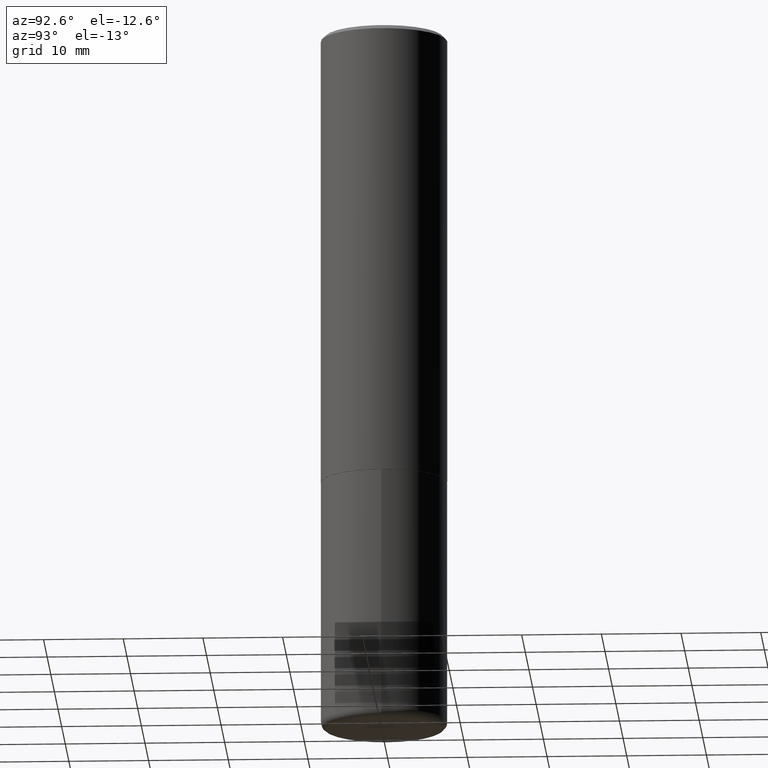
[diagram: clean part render]
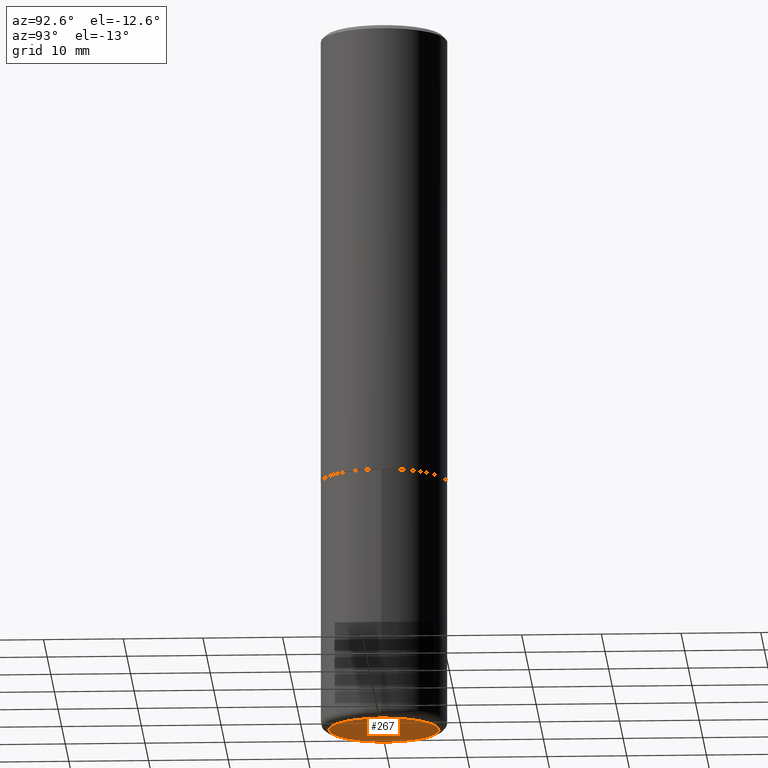
[diagram: same view with one face highlighted and labeled with its STEP entity id]
A machine part, auxiliary view. The second image highlights one B-rep face of the part: STEP entity #267.
In plain terms, the highlighted planar face has unit normal (0, -0, -1).
Its self-contained STEP definition (entity closure, byte-faithful):
#23 = DIRECTION ( 'NONE',  ( -2.445468806185136597E-29, 3.491481338843145583E-15, 1.000000000000000000 ) ) ;
#42 = AXIS2_PLACEMENT_3D ( 'NONE', #395, #229, #357 ) ;
#79 = VERTEX_POINT ( 'NONE', #95 ) ;
#80 = CIRCLE ( 'NONE', #308, 0.2725000000000000200 ) ;
#91 = CARTESIAN_POINT ( 'NONE',  ( 0.2725000000000000200, -1.412304201562051765E-14, -3.500000000000000444 ) ) ;
#95 = CARTESIAN_POINT ( 'NONE',  ( -0.2725000000000000200, -1.007201755707584997E-14, -3.500000000000000444 ) ) ;
#110 = FACE_OUTER_BOUND ( 'NONE', #342, .T. ) ;
#118 = DIRECTION ( 'NONE',  ( -1.000000000000000000, 6.982962677686265922E-15, -4.876176775795935793E-29 ) ) ;
#173 = ORIENTED_EDGE ( 'NONE', *, *, #200, .F. ) ;
#197 = AXIS2_PLACEMENT_3D ( 'NONE', #304, #275, #118 ) ;
#200 = EDGE_CURVE ( 'NONE', #79, #370, #245, .T. ) ;
#229 = DIRECTION ( 'NONE',  ( -2.445468806185136597E-29, 3.491481338843145583E-15, 1.000000000000000000 ) ) ;
#245 = CIRCLE ( 'NONE', #42, 0.2725000000000000200 ) ;
#267 = ADVANCED_FACE ( 'NONE', ( #110 ), #375, .T. ) ;
#275 = DIRECTION ( 'NONE',  ( 2.438088387897960049E-29, -3.491481338843145188E-15, -1.000000000000000000 ) ) ;
#277 = ORIENTED_EDGE ( 'NONE', *, *, #327, .F. ) ;
#304 = CARTESIAN_POINT ( 'NONE',  ( 3.658783094452102937E-29, -1.923777586233627620E-14, -3.500000000000000444 ) ) ;
#308 = AXIS2_PLACEMENT_3D ( 'NONE', #310, #23, #413 ) ;
#310 = CARTESIAN_POINT ( 'NONE',  ( 8.559140821647978089E-29, -1.222018468595101092E-14, -3.500000000000000444 ) ) ;
#327 = EDGE_CURVE ( 'NONE', #370, #79, #80, .T. ) ;
#342 = EDGE_LOOP ( 'NONE', ( #277, #173 ) ) ;
#357 = DIRECTION ( 'NONE',  ( 1.000000000000000000, -6.982962677686266711E-15, 0.000000000000000000 ) ) ;
#370 = VERTEX_POINT ( 'NONE', #91 ) ;
#375 = PLANE ( 'NONE',  #197 ) ;
#395 = CARTESIAN_POINT ( 'NONE',  ( 8.559140821647978089E-29, -1.222018468595101092E-14, -3.500000000000000444 ) ) ;
#413 = DIRECTION ( 'NONE',  ( 1.000000000000000000, -6.982962677686266711E-15, 0.000000000000000000 ) ) ;